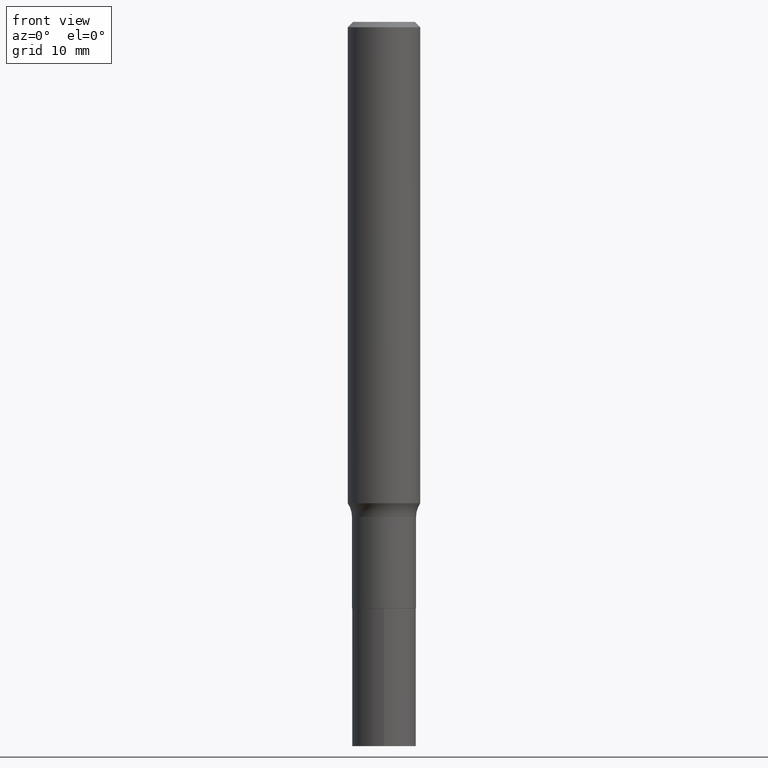
[diagram: clean part render]
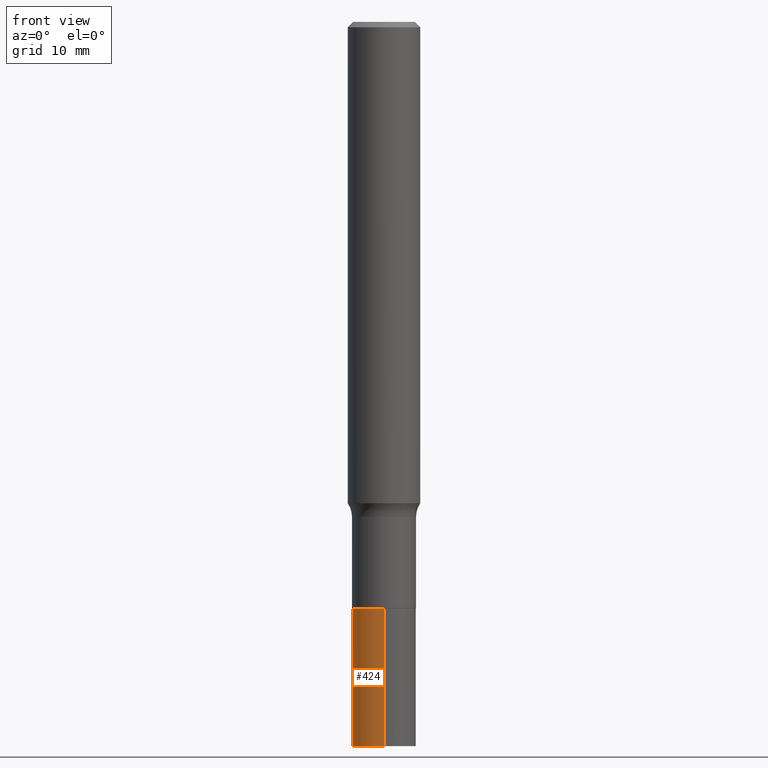
[diagram: same view with one face highlighted and labeled with its STEP entity id]
A machine part, front view. The second image highlights one B-rep face of the part: STEP entity #424.
In plain terms, the highlighted cylindrical surface (edge-blend (fillet) strip) has radius 2.6543 mm, axis along (-0, 0, 1).
Its self-contained STEP definition (entity closure, byte-faithful):
#21 = ORIENTED_EDGE ( 'NONE', *, *, #51, .F. ) ;
#25 = VERTEX_POINT ( 'NONE', #312 ) ;
#45 = VECTOR ( 'NONE', #145, 39.37007874015748143 ) ;
#51 = EDGE_CURVE ( 'NONE', #25, #135, #176, .T. ) ;
#53 = DIRECTION ( 'NONE',  ( -2.426571974108162816E-29, 3.518542677918260450E-15, 1.000000000000000000 ) ) ;
#72 = AXIS2_PLACEMENT_3D ( 'NONE', #423, #313, #98 ) ;
#91 = CIRCLE ( 'NONE', #172, 0.1044999999999999818 ) ;
#96 = FACE_OUTER_BOUND ( 'NONE', #305, .T. ) ;
#98 = DIRECTION ( 'NONE',  ( -6.982962677686265922E-15, -1.000000000000000000, 2.614208606377285061E-15 ) ) ;
#100 = DIRECTION ( 'NONE',  ( -6.982962677686265922E-15, -1.000000000000000000, 2.614208606377285061E-15 ) ) ;
#135 = VERTEX_POINT ( 'NONE', #184 ) ;
#145 = DIRECTION ( 'NONE',  ( -2.426571974108162816E-29, 3.518542677918260450E-15, 1.000000000000000000 ) ) ;
#172 = AXIS2_PLACEMENT_3D ( 'NONE', #453, #377, #304 ) ;
#176 = LINE ( 'NONE', #325, #45 ) ;
#184 = CARTESIAN_POINT ( 'NONE',  ( 7.425171588693624475E-16, 0.1044999999999933066, -1.913200000000000456 ) ) ;
#192 = ORIENTED_EDGE ( 'NONE', *, *, #228, .F. ) ;
#195 = AXIS2_PLACEMENT_3D ( 'NONE', #311, #460, #100 ) ;
#200 = CYLINDRICAL_SURFACE ( 'NONE', #195, 0.1045000000000000095 ) ;
#228 = EDGE_CURVE ( 'NONE', #135, #308, #91, .T. ) ;
#234 = CARTESIAN_POINT ( 'NONE',  ( -7.297195998181678828E-16, -0.1045000000000066709, -1.913200000000000012 ) ) ;
#264 = CARTESIAN_POINT ( 'NONE',  ( -7.297195998181680800E-16, -0.1045000000000066848, -1.913200000000000012 ) ) ;
#282 = ORIENTED_EDGE ( 'NONE', *, *, #318, .T. ) ;
#302 = CIRCLE ( 'NONE', #72, 0.1045000000000000095 ) ;
#304 = DIRECTION ( 'NONE',  ( -6.982962677686266711E-15, -1.000000000000000000, 2.614208606377285850E-15 ) ) ;
#305 = EDGE_LOOP ( 'NONE', ( #21, #336, #282, #192 ) ) ;
#306 = LINE ( 'NONE', #264, #309 ) ;
#308 = VERTEX_POINT ( 'NONE', #234 ) ;
#309 = VECTOR ( 'NONE', #53, 39.37007874015748143 ) ;
#311 = CARTESIAN_POINT ( 'NONE',  ( 4.678670919993403663E-29, -6.679902097474707102E-15, -1.913200000000000234 ) ) ;
#312 = CARTESIAN_POINT ( 'NONE',  ( 7.425171588693569255E-16, 0.1044999999999917384, -2.362200000000000966 ) ) ;
#313 = DIRECTION ( 'NONE',  ( -2.426571974108162816E-29, 3.518542677918260450E-15, 1.000000000000000000 ) ) ;
#318 = EDGE_CURVE ( 'NONE', #422, #308, #306, .T. ) ;
#325 = CARTESIAN_POINT ( 'NONE',  ( 7.425171588693514035E-16, 0.1044999999999933343, -1.913200000000000456 ) ) ;
#336 = ORIENTED_EDGE ( 'NONE', *, *, #444, .T. ) ;
#377 = DIRECTION ( 'NONE',  ( -2.426571974108162816E-29, 3.518542677918260450E-15, 1.000000000000000000 ) ) ;
#422 = VERTEX_POINT ( 'NONE', #428 ) ;
#423 = CARTESIAN_POINT ( 'NONE',  ( 5.768201736367969540E-29, -8.259727759860008173E-15, -2.362200000000000522 ) ) ;
#424 = ADVANCED_FACE ( 'NONE', ( #96 ), #200, .T. ) ;
#428 = CARTESIAN_POINT ( 'NONE',  ( -7.297195998181572331E-16, -0.1045000000000082668, -2.362200000000000077 ) ) ;
#444 = EDGE_CURVE ( 'NONE', #25, #422, #302, .T. ) ;
#453 = CARTESIAN_POINT ( 'NONE',  ( 4.678670919993403663E-29, -6.679902097474707102E-15, -1.913200000000000234 ) ) ;
#460 = DIRECTION ( 'NONE',  ( -2.426571974108162816E-29, 3.518542677918260450E-15, 1.000000000000000000 ) ) ;